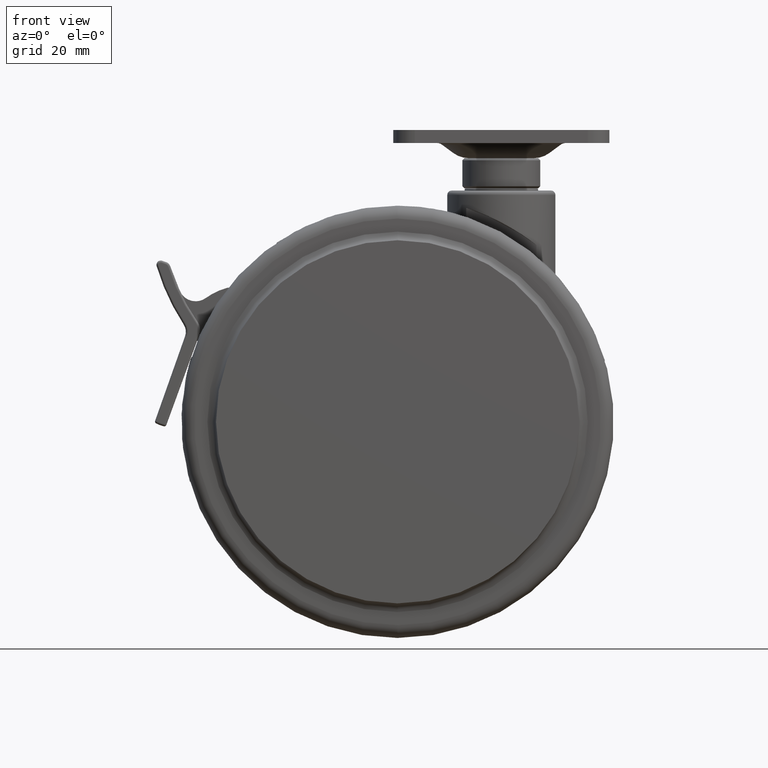
[diagram: clean part render]
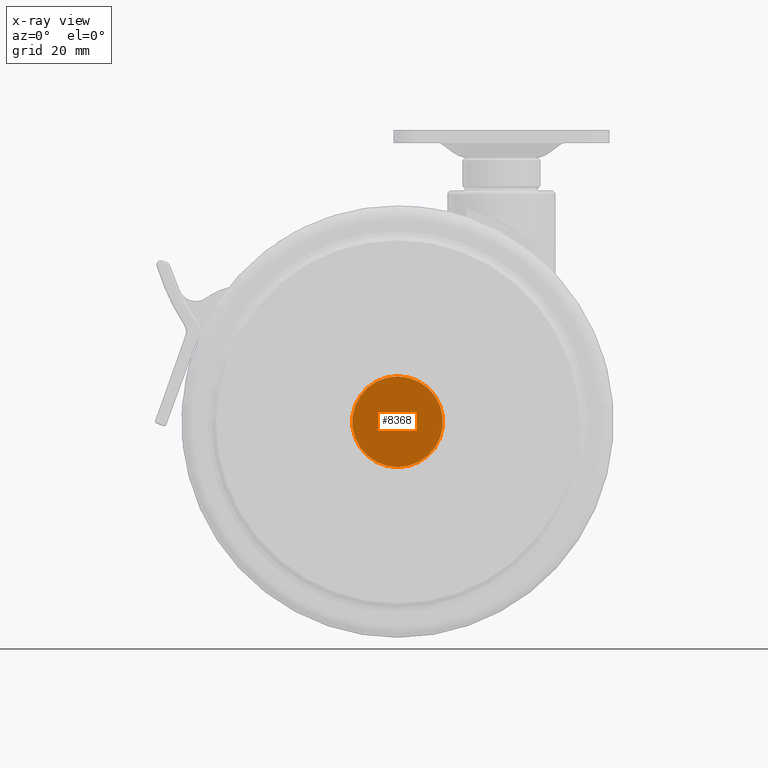
[diagram: x-ray — body ghosted, one internal face saturated and labeled with its STEP entity id]
A machine part, front view, then the same camera in x-ray: the body is ghosted and one INTERNAL B-rep face — a face not visible from any outside direction — is saturated and labeled: STEP entity #8368.
In plain terms, the highlighted planar face has unit normal (0, -1, 0).
Its self-contained STEP definition (entity closure, byte-faithful):
#70 = CIRCLE ( 'NONE', #3743, 10.50000000000000200 ) ;
#1108 = VERTEX_POINT ( 'NONE', #2411 ) ;
#1695 = CARTESIAN_POINT ( 'NONE',  ( -24.00000000000000000, -8.000000000000000000, -53.50000000000000000 ) ) ;
#2369 = DIRECTION ( 'NONE',  ( 0.0000000000000000000, 0.0000000000000000000, -1.000000000000000000 ) ) ;
#2411 = CARTESIAN_POINT ( 'NONE',  ( -24.00000000000000000, -8.000000000000000000, -64.00000000000000000 ) ) ;
#2662 = CARTESIAN_POINT ( 'NONE',  ( -24.00000000000000000, -8.000000000000000000, -43.00000000000000000 ) ) ;
#2766 = PLANE ( 'NONE',  #4662 ) ;
#3159 = CIRCLE ( 'NONE', #3251, 10.50000000000000200 ) ;
#3251 = AXIS2_PLACEMENT_3D ( 'NONE', #1695, #6358, #2369 ) ;
#3412 = CARTESIAN_POINT ( 'NONE',  ( -24.00000000000000000, -8.000000000000000000, -53.50000000000000000 ) ) ;
#3438 = DIRECTION ( 'NONE',  ( 0.0000000000000000000, -1.000000000000000000, 0.0000000000000000000 ) ) ;
#3515 = DIRECTION ( 'NONE',  ( -0.0000000000000000000, 1.000000000000000000, -0.0000000000000000000 ) ) ;
#3743 = AXIS2_PLACEMENT_3D ( 'NONE', #7510, #3515, #8162 ) ;
#4193 = EDGE_LOOP ( 'NONE', ( #4292, #7668 ) ) ;
#4292 = ORIENTED_EDGE ( 'NONE', *, *, #5568, .T. ) ;
#4662 = AXIS2_PLACEMENT_3D ( 'NONE', #3412, #3438, #8093 ) ;
#4988 = EDGE_CURVE ( 'NONE', #7277, #1108, #70, .T. ) ;
#5568 = EDGE_CURVE ( 'NONE', #1108, #7277, #3159, .T. ) ;
#6358 = DIRECTION ( 'NONE',  ( -0.0000000000000000000, 1.000000000000000000, -0.0000000000000000000 ) ) ;
#7277 = VERTEX_POINT ( 'NONE', #2662 ) ;
#7478 = FACE_OUTER_BOUND ( 'NONE', #4193, .T. ) ;
#7510 = CARTESIAN_POINT ( 'NONE',  ( -24.00000000000000000, -8.000000000000000000, -53.50000000000000000 ) ) ;
#7668 = ORIENTED_EDGE ( 'NONE', *, *, #4988, .T. ) ;
#8093 = DIRECTION ( 'NONE',  ( 0.0000000000000000000, 0.0000000000000000000, -1.000000000000000000 ) ) ;
#8162 = DIRECTION ( 'NONE',  ( 0.0000000000000000000, 0.0000000000000000000, -1.000000000000000000 ) ) ;
#8368 = ADVANCED_FACE ( 'NONE', ( #7478 ), #2766, .F. ) ;